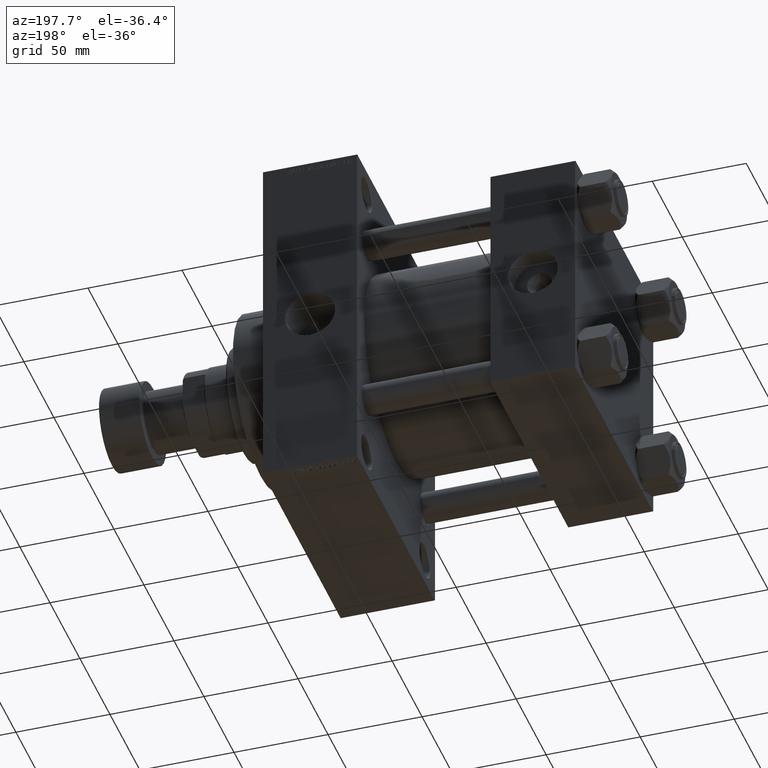
[diagram: clean part render]
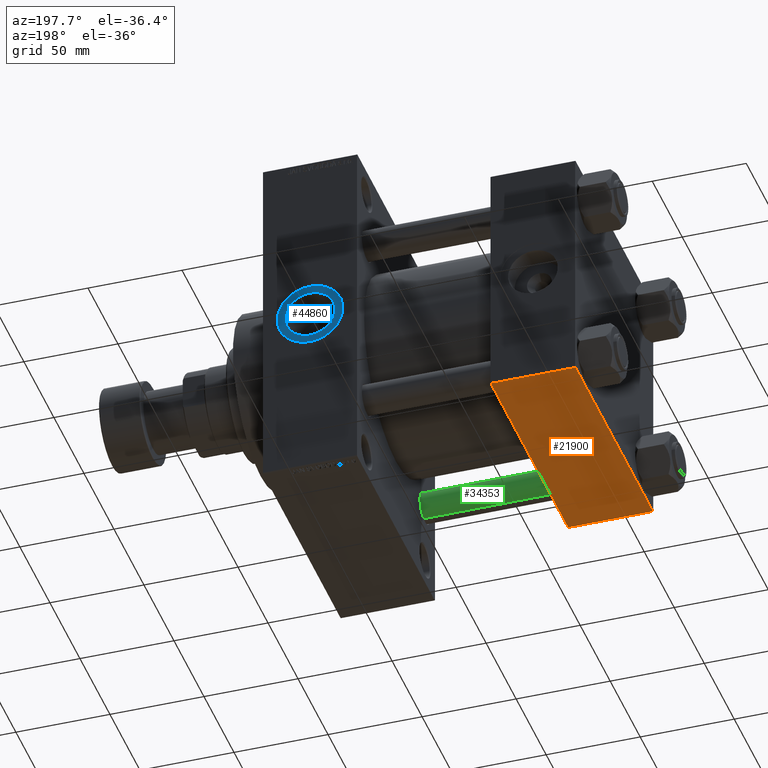
[diagram: same view with three faces highlighted in distinct colors, each labeled with its STEP entity id]
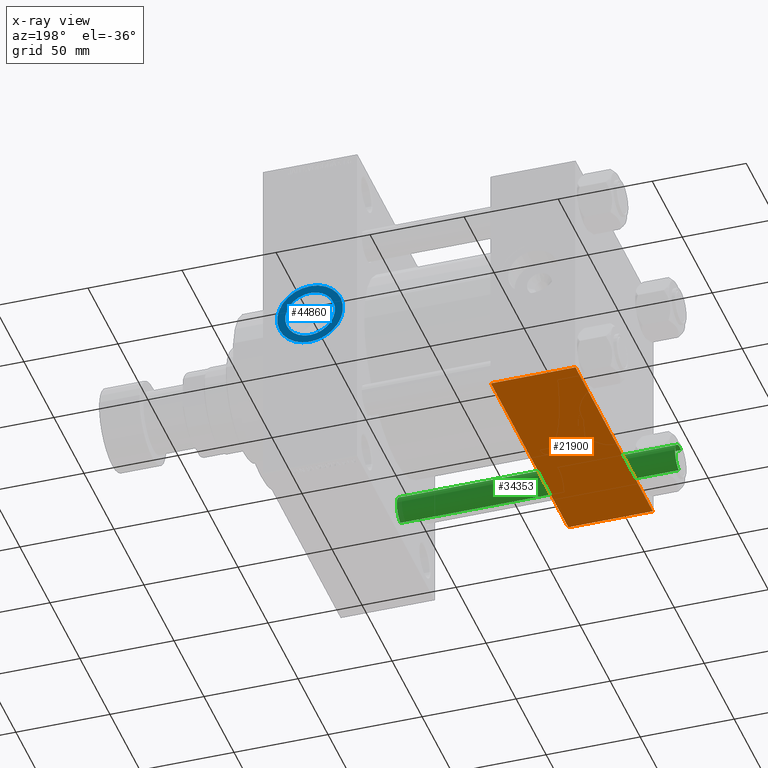
[diagram: x-ray of the same camera — body ghosted, the three highlighted faces saturated]
A machine part, auxiliary view with three faces highlighted in distinct colors.
The next image is the same camera in x-ray (body ghosted, the three faces saturated) — at least one of them is partly hidden behind the body in this view.
Their STEP definitions:

[orange] entity #21900 — the highlighted planar face has unit normal (0, 0, -1).
#761 = DIRECTION ( 'NONE',  ( 0.000000000000000000, -1.000000000000000000, -1.067522139062650425E-16 ) ) ;
#1777 = EDGE_CURVE ( 'NONE', #20990, #46955, #20072, .T. ) ;
#2133 = VERTEX_POINT ( 'NONE', #28827 ) ;
#2723 = CARTESIAN_POINT ( 'NONE',  ( 45.00000000000000000, 65.00000000000000000, -64.99999999999998579 ) ) ;
#3028 = AXIS2_PLACEMENT_3D ( 'NONE', #2723, #22272, #29901 ) ;
#4741 = LINE ( 'NONE', #31680, #18149 ) ;
#5445 = EDGE_LOOP ( 'NONE', ( #20379, #32828, #10692, #40861 ) ) ;
#9940 = CARTESIAN_POINT ( 'NONE',  ( 45.00000000000000000, 65.00000000000000000, -64.99999999999998579 ) ) ;
#10692 = ORIENTED_EDGE ( 'NONE', *, *, #50174, .T. ) ;
#10694 = EDGE_CURVE ( 'NONE', #20990, #40787, #4741, .T. ) ;
#10698 = DIRECTION ( 'NONE',  ( 0.000000000000000000, -1.000000000000000000, -1.067522139062650425E-16 ) ) ;
#16422 = LINE ( 'NONE', #32183, #22665 ) ;
#18149 = VECTOR ( 'NONE', #20221, 1000.000000000000000 ) ;
#20072 = LINE ( 'NONE', #35563, #47834 ) ;
#20221 = DIRECTION ( 'NONE',  ( 1.000000000000000000, 0.000000000000000000, 0.000000000000000000 ) ) ;
#20379 = ORIENTED_EDGE ( 'NONE', *, *, #1777, .F. ) ;
#20990 = VERTEX_POINT ( 'NONE', #42569 ) ;
#21623 = LINE ( 'NONE', #9940, #28706 ) ;
#21900 = ADVANCED_FACE ( 'NONE', ( #22015 ), #37514, .T. ) ;
#22015 = FACE_OUTER_BOUND ( 'NONE', #5445, .T. ) ;
#22272 = DIRECTION ( 'NONE',  ( 0.000000000000000000, 1.067522139062650548E-16, -1.000000000000000000 ) ) ;
#22665 = VECTOR ( 'NONE', #44072, 1000.000000000000000 ) ;
#25262 = CARTESIAN_POINT ( 'NONE',  ( 0.000000000000000000, -64.49999999999994316, -65.00000000000000000 ) ) ;
#28706 = VECTOR ( 'NONE', #10698, 1000.000000000000000 ) ;
#28827 = CARTESIAN_POINT ( 'NONE',  ( 45.00000000000000000, -64.49999999999994316, -65.00000000000000000 ) ) ;
#29901 = DIRECTION ( 'NONE',  ( 0.000000000000000000, 1.000000000000000000, 1.067522139062650548E-16 ) ) ;
#31680 = CARTESIAN_POINT ( 'NONE',  ( 45.00000000000000000, 64.49999999999997158, -64.99999999999998579 ) ) ;
#32183 = CARTESIAN_POINT ( 'NONE',  ( 0.000000000000000000, -64.49999999999994316, -65.00000000000000000 ) ) ;
#32828 = ORIENTED_EDGE ( 'NONE', *, *, #10694, .T. ) ;
#35563 = CARTESIAN_POINT ( 'NONE',  ( 0.000000000000000000, 65.00000000000000000, -64.99999999999998579 ) ) ;
#36476 = CARTESIAN_POINT ( 'NONE',  ( 45.00000000000000000, 64.49999999999997158, -64.99999999999998579 ) ) ;
#37514 = PLANE ( 'NONE',  #3028 ) ;
#40785 = EDGE_CURVE ( 'NONE', #2133, #46955, #16422, .T. ) ;
#40787 = VERTEX_POINT ( 'NONE', #36476 ) ;
#40861 = ORIENTED_EDGE ( 'NONE', *, *, #40785, .T. ) ;
#42569 = CARTESIAN_POINT ( 'NONE',  ( 0.000000000000000000, 64.49999999999997158, -64.99999999999998579 ) ) ;
#44072 = DIRECTION ( 'NONE',  ( -1.000000000000000000, 0.000000000000000000, 0.000000000000000000 ) ) ;
#46955 = VERTEX_POINT ( 'NONE', #25262 ) ;
#47834 = VECTOR ( 'NONE', #761, 1000.000000000000000 ) ;
#50174 = EDGE_CURVE ( 'NONE', #40787, #2133, #21623, .T. ) ;

[blue] entity #44860 — the highlighted planar face has unit normal (0, 1, 0).
#881 = EDGE_LOOP ( 'NONE', ( #34199, #7256 ) ) ;
#1627 = AXIS2_PLACEMENT_3D ( 'NONE', #3603, #30535, #23160 ) ;
#2233 = CARTESIAN_POINT ( 'NONE',  ( 141.0000000000000000, 64.79999999999996874, 13.22000000000001840 ) ) ;
#2371 = ORIENTED_EDGE ( 'NONE', *, *, #42297, .T. ) ;
#3300 = CIRCLE ( 'NONE', #11397, 17.49999999999999289 ) ;
#3434 = EDGE_CURVE ( 'NONE', #44531, #37986, #22739, .T. ) ;
#3603 = CARTESIAN_POINT ( 'NONE',  ( 141.0000000000000000, 64.79999999999996874, 4.747664250041786301E-15 ) ) ;
#4337 = DIRECTION ( 'NONE',  ( 0.000000000000000000, 1.000000000000000000, 0.000000000000000000 ) ) ;
#4604 = VERTEX_POINT ( 'NONE', #26643 ) ;
#5163 = EDGE_CURVE ( 'NONE', #30974, #4604, #37413, .T. ) ;
#6446 = DIRECTION ( 'NONE',  ( 0.000000000000000000, 0.000000000000000000, 1.000000000000000000 ) ) ;
#6990 = FACE_OUTER_BOUND ( 'NONE', #25561, .T. ) ;
#7256 = ORIENTED_EDGE ( 'NONE', *, *, #30313, .F. ) ;
#8641 = CIRCLE ( 'NONE', #44282, 13.22000000000001307 ) ;
#11397 = AXIS2_PLACEMENT_3D ( 'NONE', #11769, #38442, #46035 ) ;
#11769 = CARTESIAN_POINT ( 'NONE',  ( 141.0000000000000000, 64.79999999999996874, 4.747664250041786301E-15 ) ) ;
#18128 = DIRECTION ( 'NONE',  ( 0.000000000000000000, 1.000000000000000000, 0.000000000000000000 ) ) ;
#18376 = CARTESIAN_POINT ( 'NONE',  ( 141.0000000000000000, 64.79999999999996874, 4.747664250041786301E-15 ) ) ;
#21200 = AXIS2_PLACEMENT_3D ( 'NONE', #22737, #26808, #22479 ) ;
#22423 = ORIENTED_EDGE ( 'NONE', *, *, #5163, .T. ) ;
#22479 = DIRECTION ( 'NONE',  ( 0.000000000000000000, -0.000000000000000000, 1.000000000000000000 ) ) ;
#22737 = CARTESIAN_POINT ( 'NONE',  ( 141.0000000000000000, 64.79999999999996874, 4.747664250041786301E-15 ) ) ;
#22739 = CIRCLE ( 'NONE', #1627, 13.22000000000001307 ) ;
#23160 = DIRECTION ( 'NONE',  ( 0.000000000000000000, 0.000000000000000000, 1.000000000000000000 ) ) ;
#25561 = EDGE_LOOP ( 'NONE', ( #2371, #22423 ) ) ;
#26643 = CARTESIAN_POINT ( 'NONE',  ( 141.0000000000000000, 64.79999999999996874, 17.49999999999999645 ) ) ;
#26808 = DIRECTION ( 'NONE',  ( 0.000000000000000000, 1.000000000000000000, 0.000000000000000000 ) ) ;
#29651 = CARTESIAN_POINT ( 'NONE',  ( 141.0000000000000000, 64.79999999999996874, -13.22000000000000774 ) ) ;
#30313 = EDGE_CURVE ( 'NONE', #37986, #44531, #8641, .T. ) ;
#30535 = DIRECTION ( 'NONE',  ( 0.000000000000000000, 1.000000000000000000, 0.000000000000000000 ) ) ;
#30974 = VERTEX_POINT ( 'NONE', #36074 ) ;
#34199 = ORIENTED_EDGE ( 'NONE', *, *, #3434, .F. ) ;
#36074 = CARTESIAN_POINT ( 'NONE',  ( 141.0000000000000000, 64.79999999999996874, -17.49999999999998934 ) ) ;
#36606 = AXIS2_PLACEMENT_3D ( 'NONE', #45722, #4337, #45977 ) ;
#37413 = CIRCLE ( 'NONE', #36606, 17.49999999999999289 ) ;
#37986 = VERTEX_POINT ( 'NONE', #29651 ) ;
#38442 = DIRECTION ( 'NONE',  ( 0.000000000000000000, 1.000000000000000000, 0.000000000000000000 ) ) ;
#41760 = FACE_BOUND ( 'NONE', #881, .T. ) ;
#42297 = EDGE_CURVE ( 'NONE', #4604, #30974, #3300, .T. ) ;
#44282 = AXIS2_PLACEMENT_3D ( 'NONE', #18376, #18128, #6446 ) ;
#44531 = VERTEX_POINT ( 'NONE', #2233 ) ;
#44860 = ADVANCED_FACE ( 'NONE', ( #41760, #6990 ), #46079, .T. ) ;
#45722 = CARTESIAN_POINT ( 'NONE',  ( 141.0000000000000000, 64.79999999999996874, 4.747664250041786301E-15 ) ) ;
#45977 = DIRECTION ( 'NONE',  ( 0.000000000000000000, 0.000000000000000000, 1.000000000000000000 ) ) ;
#46035 = DIRECTION ( 'NONE',  ( 0.000000000000000000, 0.000000000000000000, 1.000000000000000000 ) ) ;
#46079 = PLANE ( 'NONE',  #21200 ) ;

[green] entity #34353 — the highlighted cylindrical surface (edge-blend (fillet) strip) has radius 8 mm, axis along (-1, 0, 0).
#1662 = AXIS2_PLACEMENT_3D ( 'NONE', #48906, #29634, #10070 ) ;
#2440 = CARTESIAN_POINT ( 'NONE',  ( 8.000000000000000000, 9.797174393178825657E-16, 148.5000000000000000 ) ) ;
#3777 = VERTEX_POINT ( 'NONE', #18366 ) ;
#4587 = EDGE_CURVE ( 'NONE', #14496, #42269, #18250, .T. ) ;
#6081 = ORIENTED_EDGE ( 'NONE', *, *, #42867, .T. ) ;
#9927 = DIRECTION ( 'NONE',  ( -1.000000000000000000, 0.000000000000000000, 0.000000000000000000 ) ) ;
#10070 = DIRECTION ( 'NONE',  ( 1.000000000000000000, 0.000000000000000000, 0.000000000000000000 ) ) ;
#10532 = CARTESIAN_POINT ( 'NONE',  ( -8.000000000000000000, 0.000000000000000000, 0.5000000000000281997 ) ) ;
#10886 = ORIENTED_EDGE ( 'NONE', *, *, #23956, .T. ) ;
#12381 = DIRECTION ( 'NONE',  ( 1.000000000000000000, 0.000000000000000000, 0.000000000000000000 ) ) ;
#13233 = CYLINDRICAL_SURFACE ( 'NONE', #40404, 8.000000000000000000 ) ;
#14496 = VERTEX_POINT ( 'NONE', #2440 ) ;
#14637 = VECTOR ( 'NONE', #25129, 1000.000000000000000 ) ;
#14999 = ORIENTED_EDGE ( 'NONE', *, *, #4587, .F. ) ;
#16291 = DIRECTION ( 'NONE',  ( -0.000000000000000000, -0.000000000000000000, -1.000000000000000000 ) ) ;
#18250 = LINE ( 'NONE', #28687, #14637 ) ;
#18366 = CARTESIAN_POINT ( 'NONE',  ( -8.000000000000000000, 0.000000000000000000, 148.5000000000000000 ) ) ;
#18626 = CARTESIAN_POINT ( 'NONE',  ( 8.000000000000000000, 9.797174393178825657E-16, 0.5000000000000281997 ) ) ;
#21307 = VERTEX_POINT ( 'NONE', #10532 ) ;
#23149 = ORIENTED_EDGE ( 'NONE', *, *, #40790, .T. ) ;
#23956 = EDGE_CURVE ( 'NONE', #3777, #21307, #27252, .T. ) ;
#24053 = CARTESIAN_POINT ( 'NONE',  ( 0.000000000000000000, 0.000000000000000000, 148.5000000000000000 ) ) ;
#24555 = DIRECTION ( 'NONE',  ( 0.000000000000000000, 0.000000000000000000, -1.000000000000000000 ) ) ;
#24999 = VECTOR ( 'NONE', #16291, 1000.000000000000000 ) ;
#25129 = DIRECTION ( 'NONE',  ( -0.000000000000000000, -0.000000000000000000, -1.000000000000000000 ) ) ;
#25998 = CIRCLE ( 'NONE', #1662, 8.000000000000000000 ) ;
#27252 = LINE ( 'NONE', #42714, #24999 ) ;
#28687 = CARTESIAN_POINT ( 'NONE',  ( 8.000000000000000000, 9.797174393178825657E-16, 149.0000000000000000 ) ) ;
#29240 = DIRECTION ( 'NONE',  ( -0.000000000000000000, -0.000000000000000000, -1.000000000000000000 ) ) ;
#29634 = DIRECTION ( 'NONE',  ( -0.000000000000000000, -0.000000000000000000, 1.000000000000000000 ) ) ;
#33296 = CARTESIAN_POINT ( 'NONE',  ( 0.000000000000000000, 0.000000000000000000, 149.0000000000000000 ) ) ;
#34353 = ADVANCED_FACE ( 'NONE', ( #48021 ), #13233, .T. ) ;
#37261 = CIRCLE ( 'NONE', #46972, 8.000000000000000000 ) ;
#39401 = EDGE_LOOP ( 'NONE', ( #14999, #23149, #10886, #6081 ) ) ;
#40404 = AXIS2_PLACEMENT_3D ( 'NONE', #33296, #29240, #9927 ) ;
#40790 = EDGE_CURVE ( 'NONE', #14496, #3777, #37261, .T. ) ;
#42269 = VERTEX_POINT ( 'NONE', #18626 ) ;
#42714 = CARTESIAN_POINT ( 'NONE',  ( -8.000000000000000000, 0.000000000000000000, 149.0000000000000000 ) ) ;
#42867 = EDGE_CURVE ( 'NONE', #21307, #42269, #25998, .T. ) ;
#46972 = AXIS2_PLACEMENT_3D ( 'NONE', #24053, #24555, #12381 ) ;
#48021 = FACE_OUTER_BOUND ( 'NONE', #39401, .T. ) ;
#48906 = CARTESIAN_POINT ( 'NONE',  ( 0.000000000000000000, 0.000000000000000000, 0.5000000000000281997 ) ) ;